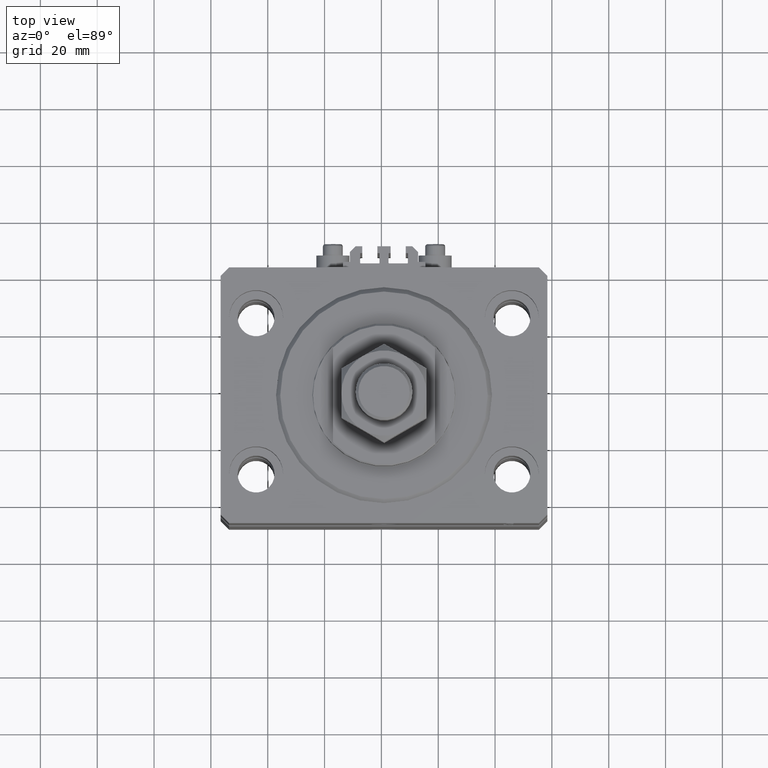
[diagram: clean part render]
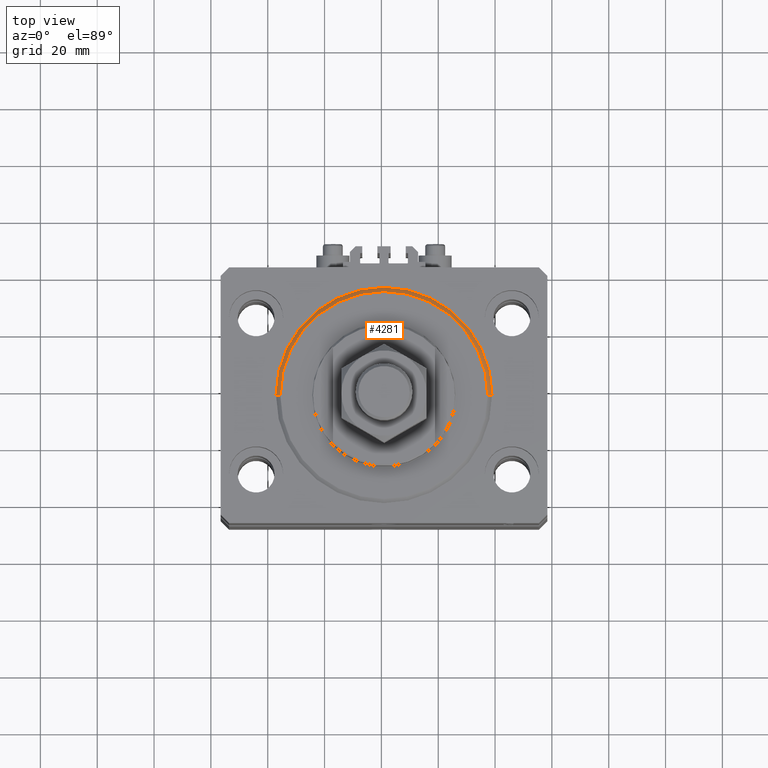
[diagram: same view with one face highlighted and labeled with its STEP entity id]
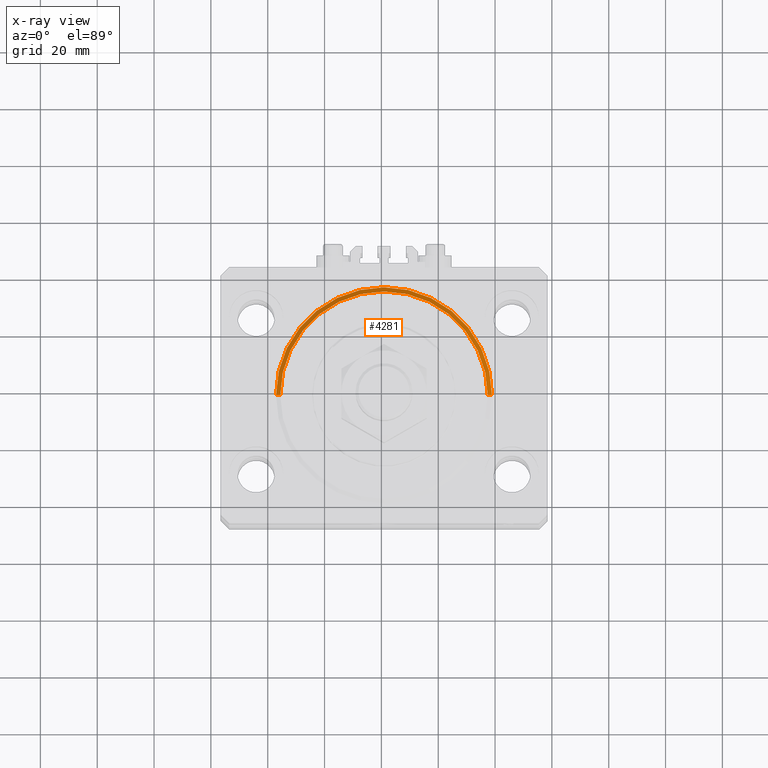
[diagram: x-ray of the same camera — body ghosted, the highlighted face saturated]
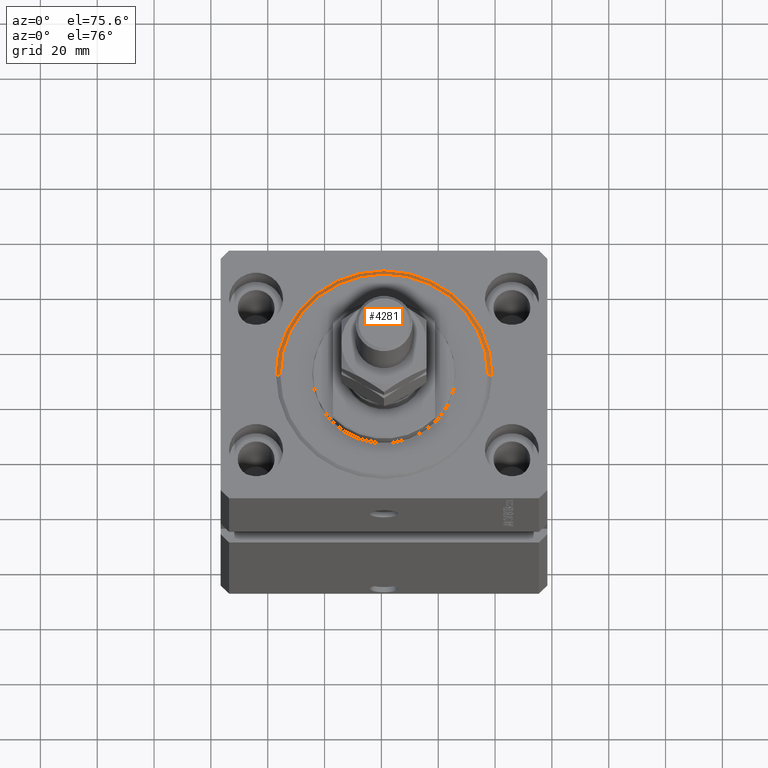
[diagram: same view with one face highlighted and labeled with its STEP entity id]
A machine part, top view. The second image highlights one B-rep face of the part: STEP entity #4281.
The next image is the same camera in x-ray: the body ghosted, the highlighted face saturated — about 0% of this face is hidden behind the body in this view.
A second angle (auxiliary view) of the same face is appended — the face is thin or edge-on in the first view.
In plain terms, the highlighted conical surface has half-angle 45 deg.
Its self-contained STEP definition (entity closure, byte-faithful):
#1619 = CONICAL_SURFACE ( 'NONE', #8099, 38.00000000000000000, 0.7853981633974529419 ) ;
#2719 = DIRECTION ( 'NONE',  ( -0.7071067811865507924, 8.659560562354972301E-17, 0.7071067811865441310 ) ) ;
#3013 = VERTEX_POINT ( 'NONE', #36685 ) ;
#4281 = ADVANCED_FACE ( 'NONE', ( #34437 ), #1619, .T. ) ;
#6025 = DIRECTION ( 'NONE',  ( 1.000000000000000000, 0.000000000000000000, 0.000000000000000000 ) ) ;
#7084 = CARTESIAN_POINT ( 'NONE',  ( 36.50000000000000000, 0.000000000000000000, 0.000000000000000000 ) ) ;
#7281 = LINE ( 'NONE', #37732, #20273 ) ;
#8099 = AXIS2_PLACEMENT_3D ( 'NONE', #42340, #46155, #45907 ) ;
#14150 = DIRECTION ( 'NONE',  ( -0.000000000000000000, -0.000000000000000000, -1.000000000000000000 ) ) ;
#15823 = DIRECTION ( 'NONE',  ( 1.000000000000000000, 0.000000000000000000, 0.000000000000000000 ) ) ;
#16344 = AXIS2_PLACEMENT_3D ( 'NONE', #40819, #14150, #6025 ) ;
#16847 = AXIS2_PLACEMENT_3D ( 'NONE', #23677, #50169, #15823 ) ;
#17114 = VERTEX_POINT ( 'NONE', #17974 ) ;
#17334 = EDGE_CURVE ( 'NONE', #33905, #3013, #31873, .T. ) ;
#17974 = CARTESIAN_POINT ( 'NONE',  ( -38.00000000000000000, 0.000000000000000000, 1.499999999999987566 ) ) ;
#20190 = CARTESIAN_POINT ( 'NONE',  ( 38.00000000000000000, 0.000000000000000000, 1.499999999999987566 ) ) ;
#20273 = VECTOR ( 'NONE', #2719, 1000.000000000000114 ) ;
#23677 = CARTESIAN_POINT ( 'NONE',  ( 0.000000000000000000, 0.000000000000000000, 1.499999999999987566 ) ) ;
#24832 = EDGE_LOOP ( 'NONE', ( #47789, #33786, #30798, #45174 ) ) ;
#27317 = EDGE_CURVE ( 'NONE', #38741, #33905, #46413, .T. ) ;
#28576 = EDGE_CURVE ( 'NONE', #38741, #17114, #7281, .T. ) ;
#30798 = ORIENTED_EDGE ( 'NONE', *, *, #42595, .F. ) ;
#31873 = LINE ( 'NONE', #20190, #40311 ) ;
#33786 = ORIENTED_EDGE ( 'NONE', *, *, #28576, .T. ) ;
#33905 = VERTEX_POINT ( 'NONE', #7084 ) ;
#34437 = FACE_OUTER_BOUND ( 'NONE', #24832, .T. ) ;
#35460 = CIRCLE ( 'NONE', #16847, 38.00000000000000000 ) ;
#36685 = CARTESIAN_POINT ( 'NONE',  ( 38.00000000000000000, 4.653657836759941941E-15, 1.499999999999987566 ) ) ;
#37732 = CARTESIAN_POINT ( 'NONE',  ( -38.00000000000000000, 4.653657836759941152E-15, 1.499999999999987566 ) ) ;
#38741 = VERTEX_POINT ( 'NONE', #46495 ) ;
#40311 = VECTOR ( 'NONE', #46658, 1000.000000000000114 ) ;
#40819 = CARTESIAN_POINT ( 'NONE',  ( 0.000000000000000000, 0.000000000000000000, 0.000000000000000000 ) ) ;
#42340 = CARTESIAN_POINT ( 'NONE',  ( 0.000000000000000000, 0.000000000000000000, 1.499999999999987566 ) ) ;
#42595 = EDGE_CURVE ( 'NONE', #3013, #17114, #35460, .T. ) ;
#45174 = ORIENTED_EDGE ( 'NONE', *, *, #17334, .F. ) ;
#45907 = DIRECTION ( 'NONE',  ( 1.000000000000000000, 0.000000000000000000, 0.000000000000000000 ) ) ;
#46155 = DIRECTION ( 'NONE',  ( -0.000000000000000000, -0.000000000000000000, 1.000000000000000000 ) ) ;
#46413 = CIRCLE ( 'NONE', #16344, 36.50000000000000000 ) ;
#46495 = CARTESIAN_POINT ( 'NONE',  ( -36.50000000000000000, 4.561809326823889791E-15, 0.000000000000000000 ) ) ;
#46658 = DIRECTION ( 'NONE',  ( 0.7071067811865507924, 0.000000000000000000, 0.7071067811865441310 ) ) ;
#47789 = ORIENTED_EDGE ( 'NONE', *, *, #27317, .F. ) ;
#50169 = DIRECTION ( 'NONE',  ( -0.000000000000000000, -0.000000000000000000, 1.000000000000000000 ) ) ;